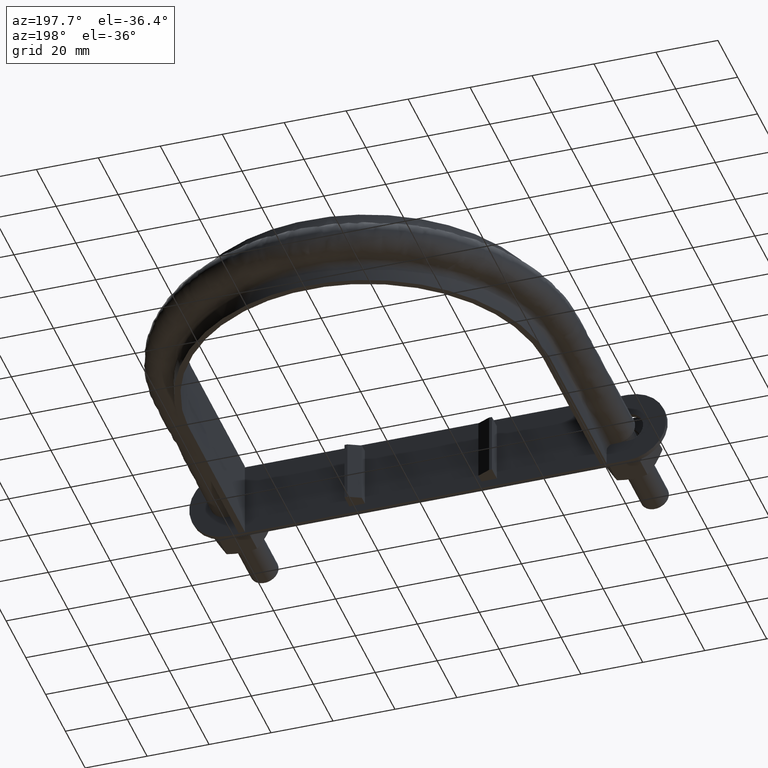
[diagram: clean part render]
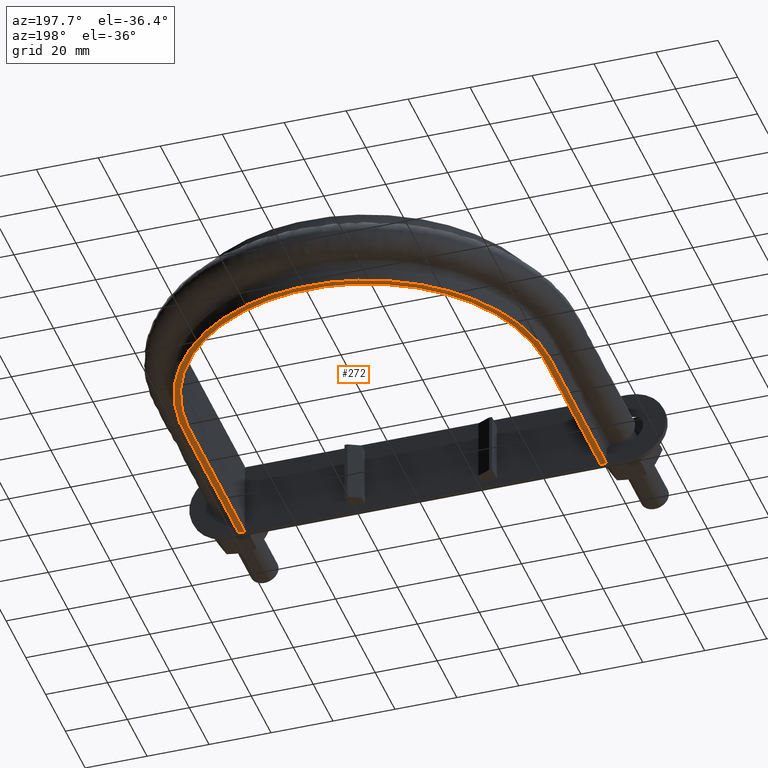
[diagram: same view with one face highlighted and labeled with its STEP entity id]
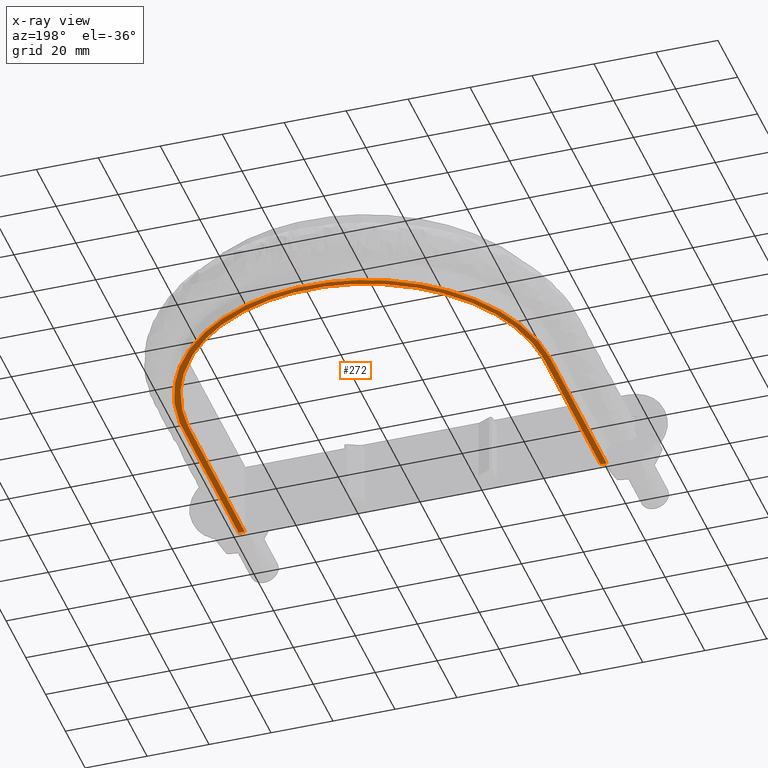
[diagram: x-ray of the same camera — body ghosted, the highlighted face saturated]
A machine part, auxiliary view. The second image highlights one B-rep face of the part: STEP entity #272.
The next image is the same camera in x-ray: the body ghosted, the highlighted face saturated — about 0% of this face is hidden behind the body in this view.
In plain terms, the highlighted planar face has unit normal (0, 0, 1).
Its self-contained STEP definition (entity closure, byte-faithful):
#272 = ADVANCED_FACE( '', ( #388 ), #389, .F. );
#388 = FACE_OUTER_BOUND( '', #1132, .T. );
#389 = PLANE( '', #1133 );
#1132 = EDGE_LOOP( '', ( #1575, #1576, #1577, #1578 ) );
#1133 = AXIS2_PLACEMENT_3D( '', #1579, #1580, #1581 );
#1575 = ORIENTED_EDGE( '', *, *, #2335, .F. );
#1576 = ORIENTED_EDGE( '', *, *, #2334, .F. );
#1577 = ORIENTED_EDGE( '', *, *, #2342, .F. );
#1578 = ORIENTED_EDGE( '', *, *, #2340, .F. );
#1579 = CARTESIAN_POINT( '', ( 75.0000000000000, 167.300000000000, -12.5000000000000 ) );
#1580 = DIRECTION( '', ( 0.000000000000000, 0.000000000000000, 1.00000000000000 ) );
#1581 = DIRECTION( '', ( 1.00000000000000, 0.000000000000000, 0.000000000000000 ) );
#2334 = EDGE_CURVE( '', #2568, #2564, #2570, .T. );
#2335 = EDGE_CURVE( '', #2564, #2571, #2572, .F. );
#2340 = EDGE_CURVE( '', #2571, #2579, #2580, .T. );
#2342 = EDGE_CURVE( '', #2579, #2568, #2582, .F. );
#2564 = VERTEX_POINT( '', #2948 );
#2568 = VERTEX_POINT( '', #2954 );
#2570 = LINE( '', #2986, #2987 );
#2571 = VERTEX_POINT( '', #2988 );
#2572 = B_SPLINE_CURVE_WITH_KNOTS( '', 3, ( #2989, #2990, #2991, #2992, #2993, #2994, #2995, #2996, #2997, #2998, #2999, #3000, #3001, #3002, #3003, #3004 ), .UNSPECIFIED., .F., .F., ( 4, 3, 1, 1, 1, 1, 1, 1, 3, 4 ), ( -8.93693843594010, -8.00000000000000, -7.00000000000000, -6.00000000000000, -5.00000000000000, -4.00000000000000, -3.00000000000000, -2.00000000000000, -1.00000000000000, -0.0630615640599001 ), .UNSPECIFIED. );
#2579 = VERTEX_POINT( '', #3115 );
#2580 = LINE( '', #3116, #3117 );
#2582 = B_SPLINE_CURVE_WITH_KNOTS( '', 3, ( #3149, #3150, #3151, #3152, #3153, #3154, #3155, #3156, #3157, #3158, #3159, #3160, #3161, #3162, #3163, #3164 ), .UNSPECIFIED., .F., .F., ( 4, 3, 1, 1, 1, 1, 1, 1, 3, 4 ), ( 0.0630615640598999, 1.00000000000000, 2.00000000000000, 3.00000000000000, 4.00000000000000, 5.00000000000000, 6.00000000000000, 7.00000000000000, 8.00000000000000, 8.93693843594010 ), .UNSPECIFIED. );
#2948 = CARTESIAN_POINT( '', ( -57.4000000000000, 37.3000000000000, -12.5000000000000 ) );
#2954 = CARTESIAN_POINT( '', ( -59.4000000000000, 37.3000000000000, -12.5000000000000 ) );
#2986 = CARTESIAN_POINT( '', ( -75.0000000000000, 37.3000000000000, -12.5000000000000 ) );
#2987 = VECTOR( '', #3799, 1000.00000000000 );
#2988 = CARTESIAN_POINT( '', ( 57.4000000000000, 37.3000000000000, -12.5000000000000 ) );
#2989 = CARTESIAN_POINT( '', ( 57.4000000000000, 37.3000000000000, -12.5000000000000 ) );
#2990 = CARTESIAN_POINT( '', ( 57.4000000000000, 56.0700000000000, -12.5000000000000 ) );
#2991 = CARTESIAN_POINT( '', ( 57.4000000000000, 74.8399999999999, -12.5000000000000 ) );
#2992 = CARTESIAN_POINT( '', ( 57.4000000000000, 93.6100000000000, -12.5000000000000 ) );
#2993 = CARTESIAN_POINT( '', ( 57.4000000000000, 102.180493203978, -12.5000000000000 ) );
#2994 = CARTESIAN_POINT( '', ( 53.4810424094545, 119.371852668646, -12.5000000000000 ) );
#2995 = CARTESIAN_POINT( '', ( 37.0100296725023, 140.017335605858, -12.5000000000000 ) );
#2996 = CARTESIAN_POINT( '', ( 13.2087266606841, 151.481567469912, -12.5000000000000 ) );
#2997 = CARTESIAN_POINT( '', ( -13.2087266606841, 151.481567469912, -12.5000000000000 ) );
#2998 = CARTESIAN_POINT( '', ( -37.0100296725023, 140.017335605858, -12.5000000000000 ) );
#2999 = CARTESIAN_POINT( '', ( -53.4810424094545, 119.371852668646, -12.5000000000000 ) );
#3000 = CARTESIAN_POINT( '', ( -57.4000000000000, 102.180493203978, -12.5000000000000 ) );
#3001 = CARTESIAN_POINT( '', ( -57.4000000000000, 93.6100000000000, -12.5000000000000 ) );
#3002 = CARTESIAN_POINT( '', ( -57.4000000000000, 74.8400000000000, -12.5000000000000 ) );
#3003 = CARTESIAN_POINT( '', ( -57.4000000000000, 56.0700000000000, -12.5000000000000 ) );
#3004 = CARTESIAN_POINT( '', ( -57.4000000000000, 37.3000000000000, -12.5000000000000 ) );
#3115 = CARTESIAN_POINT( '', ( 59.4000000000000, 37.3000000000000, -12.5000000000000 ) );
#3116 = CARTESIAN_POINT( '', ( -75.0000000000000, 37.3000000000000, -12.5000000000000 ) );
#3117 = VECTOR( '', #3802, 1000.00000000000 );
#3149 = CARTESIAN_POINT( '', ( -59.4000000000000, 37.3000000000000, -12.5000000000000 ) );
#3150 = CARTESIAN_POINT( '', ( -59.4000000000000, 56.0700000000001, -12.5000000000000 ) );
#3151 = CARTESIAN_POINT( '', ( -59.4000000000000, 74.8400000000000, -12.5000000000000 ) );
#3152 = CARTESIAN_POINT( '', ( -59.4000000000000, 93.6100000000000, -12.5000000000000 ) );
#3153 = CARTESIAN_POINT( '', ( -59.4000000000000, 102.484817836499, -12.5000000000000 ) );
#3154 = CARTESIAN_POINT( '', ( -55.3444933644878, 120.266836188810, -12.5000000000000 ) );
#3155 = CARTESIAN_POINT( '', ( -38.2995777447149, 141.635011205915, -12.5000000000000 ) );
#3156 = CARTESIAN_POINT( '', ( -13.6689610391051, 153.497859339138, -12.5000000000000 ) );
#3157 = CARTESIAN_POINT( '', ( 13.6689610391052, 153.497859339137, -12.5000000000000 ) );
#3158 = CARTESIAN_POINT( '', ( 38.2995777447150, 141.635011205915, -12.5000000000000 ) );
#3159 = CARTESIAN_POINT( '', ( 55.3444933644878, 120.266836188810, -12.5000000000000 ) );
#3160 = CARTESIAN_POINT( '', ( 59.4000000000000, 102.484817836499, -12.5000000000000 ) );
#3161 = CARTESIAN_POINT( '', ( 59.4000000000000, 93.6100000000000, -12.5000000000000 ) );
#3162 = CARTESIAN_POINT( '', ( 59.4000000000000, 74.8399999999999, -12.5000000000000 ) );
#3163 = CARTESIAN_POINT( '', ( 59.4000000000000, 56.0700000000000, -12.5000000000000 ) );
#3164 = CARTESIAN_POINT( '', ( 59.4000000000000, 37.3000000000000, -12.5000000000000 ) );
#3799 = DIRECTION( '', ( 1.00000000000000, -1.83649404852125E-048, 0.000000000000000 ) );
#3802 = DIRECTION( '', ( 1.00000000000000, -1.83649404852125E-048, 0.000000000000000 ) );